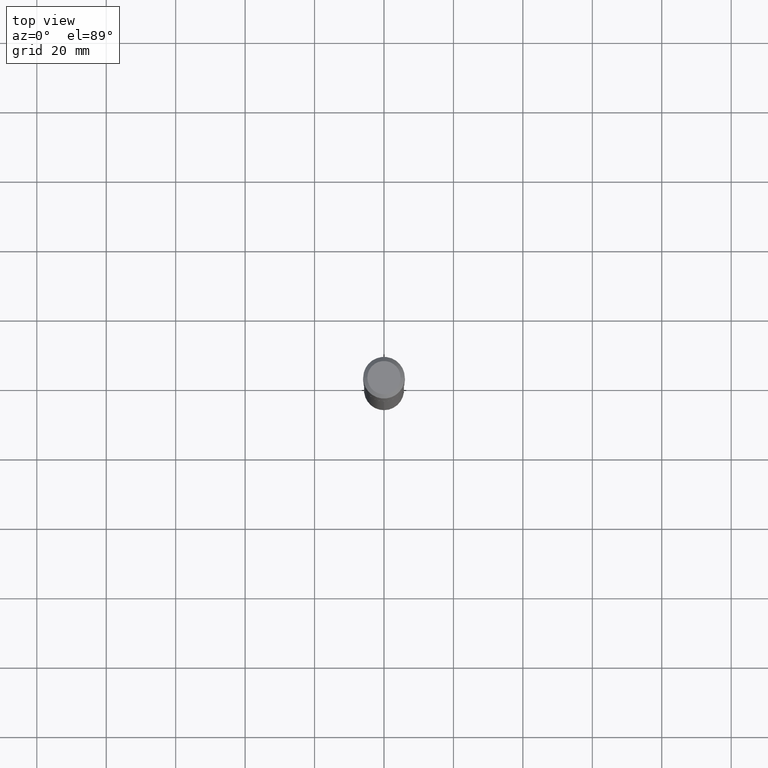
[diagram: clean part render]
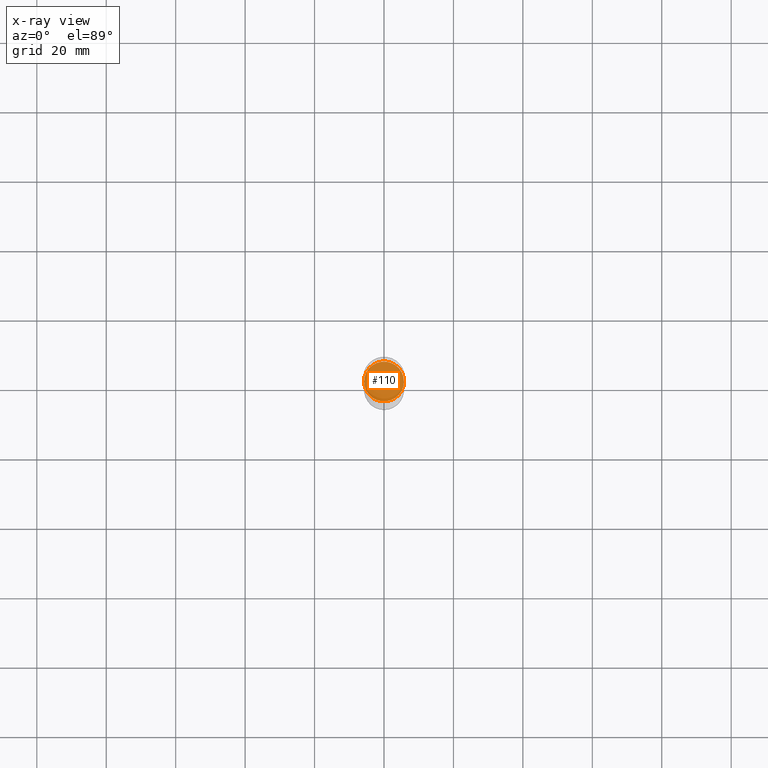
[diagram: x-ray — body ghosted, one internal face saturated and labeled with its STEP entity id]
A machine part, top view, then the same camera in x-ray: the body is ghosted and one INTERNAL B-rep face — a face not visible from any outside direction — is saturated and labeled: STEP entity #110.
In plain terms, the highlighted planar face has unit normal (-0, 0, 1).
Its self-contained STEP definition (entity closure, byte-faithful):
#16 = CIRCLE ( 'NONE', #430, 0.2258999999999999619 ) ;
#32 = DIRECTION ( 'NONE',  ( -2.445468806185136597E-29, 3.491481338843145583E-15, 1.000000000000000000 ) ) ;
#71 = EDGE_LOOP ( 'NONE', ( #225, #388 ) ) ;
#90 = CARTESIAN_POINT ( 'NONE',  ( 6.282898456850853154E-29, -8.970313855755810503E-15, -2.569200000000000372 ) ) ;
#110 = ADVANCED_FACE ( 'NONE', ( #134 ), #171, .F. ) ;
#118 = DIRECTION ( 'NONE',  ( 1.000000000000000000, -6.982962677686271444E-15, 0.000000000000000000 ) ) ;
#134 = FACE_OUTER_BOUND ( 'NONE', #71, .T. ) ;
#157 = VERTEX_POINT ( 'NONE', #471 ) ;
#171 = PLANE ( 'NONE',  #456 ) ;
#194 = DIRECTION ( 'NONE',  ( 1.000000000000000000, -6.982962677686271444E-15, 0.000000000000000000 ) ) ;
#200 = CARTESIAN_POINT ( 'NONE',  ( 6.282898456850853154E-29, -8.970313855755810503E-15, -2.569200000000000372 ) ) ;
#225 = ORIENTED_EDGE ( 'NONE', *, *, #252, .F. ) ;
#251 = DIRECTION ( 'NONE',  ( -2.438088387897960049E-29, 3.491481338843145188E-15, 1.000000000000000000 ) ) ;
#252 = EDGE_CURVE ( 'NONE', #353, #157, #16, .T. ) ;
#277 = EDGE_CURVE ( 'NONE', #157, #353, #447, .T. ) ;
#291 = DIRECTION ( 'NONE',  ( 1.000000000000000000, -6.982962677686265922E-15, 4.876176775795935793E-29 ) ) ;
#309 = DIRECTION ( 'NONE',  ( -2.445468806185136597E-29, 3.491481338843145583E-15, 1.000000000000000000 ) ) ;
#353 = VERTEX_POINT ( 'NONE', #466 ) ;
#388 = ORIENTED_EDGE ( 'NONE', *, *, #277, .F. ) ;
#414 = CARTESIAN_POINT ( 'NONE',  ( 6.282898456850853154E-29, -8.970313855755810503E-15, -2.569200000000000372 ) ) ;
#430 = AXIS2_PLACEMENT_3D ( 'NONE', #200, #309, #118 ) ;
#447 = CIRCLE ( 'NONE', #464, 0.2258999999999999619 ) ;
#456 = AXIS2_PLACEMENT_3D ( 'NONE', #90, #251, #291 ) ;
#464 = AXIS2_PLACEMENT_3D ( 'NONE', #414, #32, #194 ) ;
#466 = CARTESIAN_POINT ( 'NONE',  ( 0.2258999999999999619, -1.054776512464513950E-14, -2.569200000000000372 ) ) ;
#471 = CARTESIAN_POINT ( 'NONE',  ( -0.2258999999999999619, -7.362548588499633844E-15, -2.569200000000000372 ) ) ;